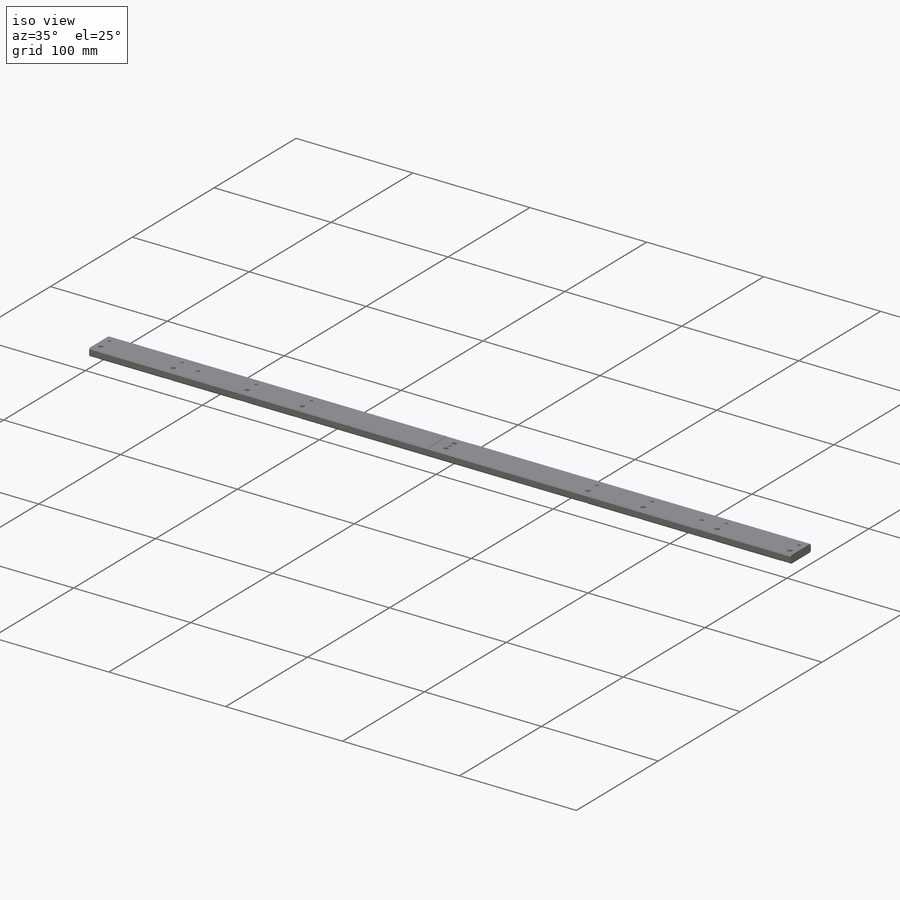
[diagram: iso view]
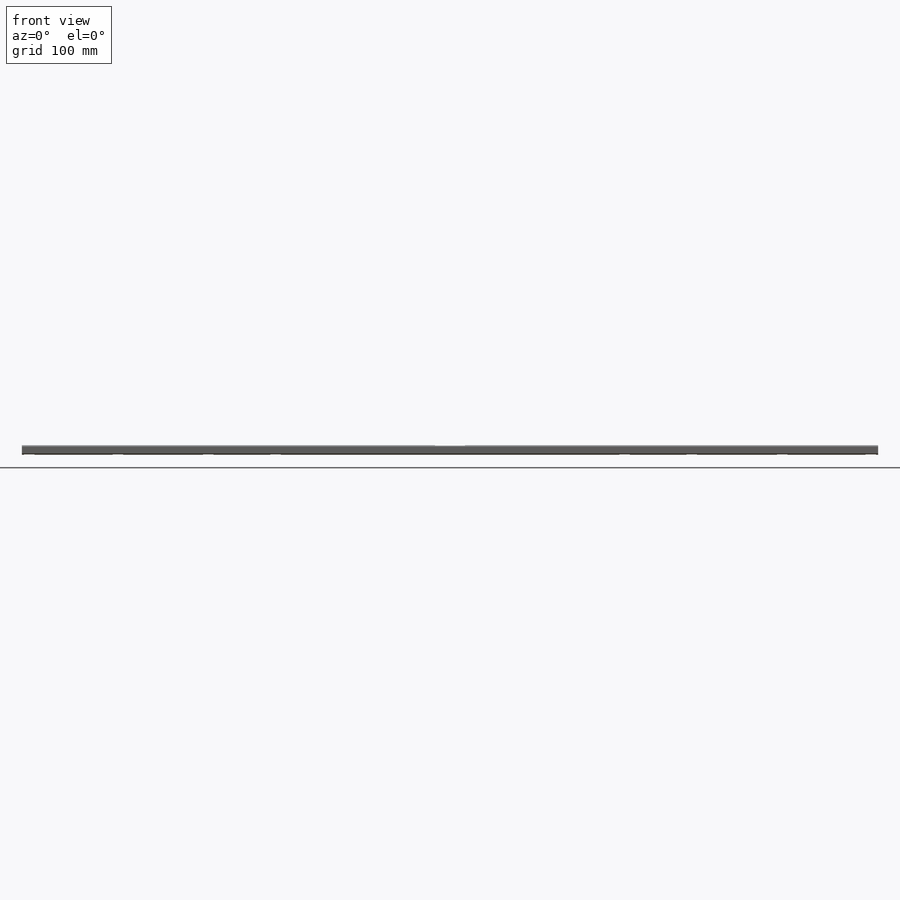
[diagram: front view]
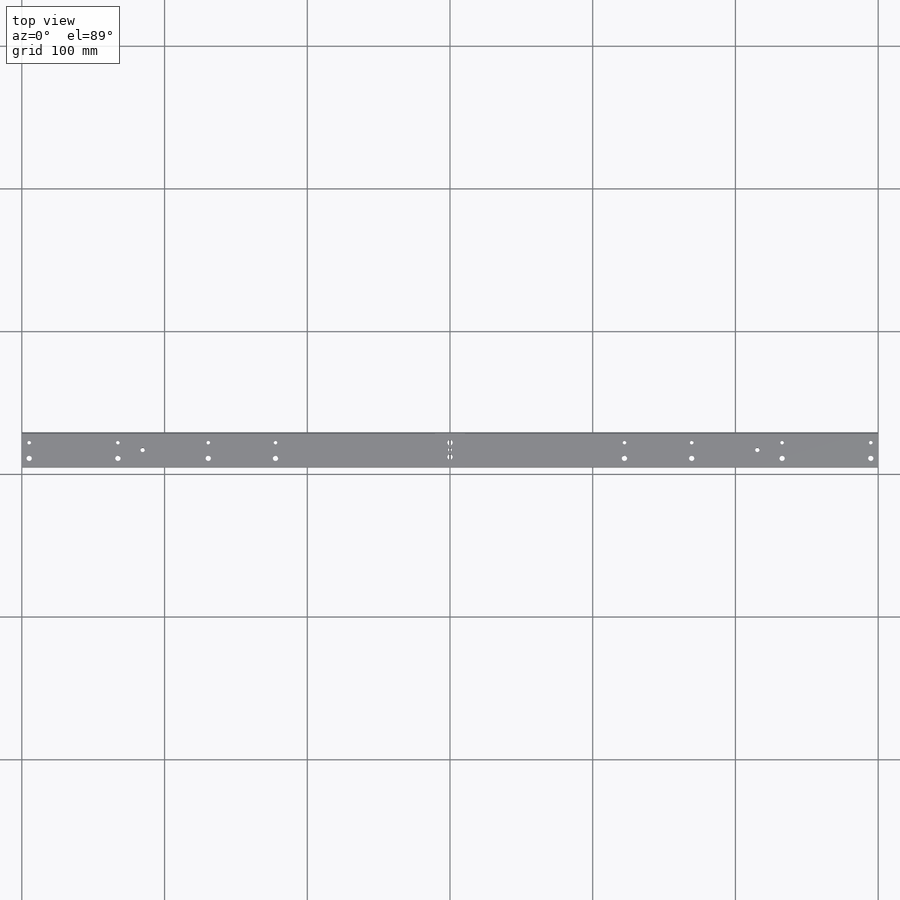
[diagram: top view]
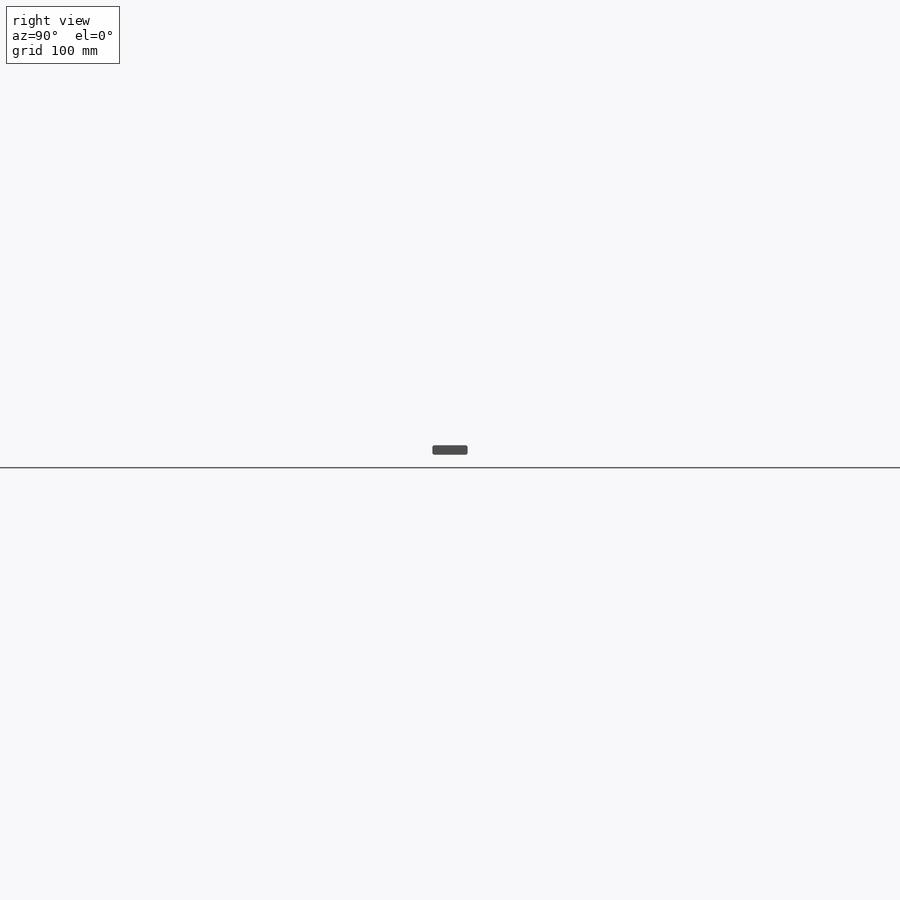
[diagram: right view]
SOLIDWORKS PART (.sldprt)
format: sldprt  version: not decoded by parser v0  size: 770,048 bytes
history: native  units: mm
features: plane x11, sketch x9, cut_extrude x7, material x1, extrude x1, chamfer x1 + 2 further entries (+12 scaffold rows collapsed)
feature tree (44):
  scaffold x12  (default folders/planes/origin — collapsed)
  material  "Material <not specified>"
  plane  "Plane1"
  plane  "Plane2"
  plane  "Plane3"
  "Axis2"
  "Axis3"
  sketch  "Sketch30"  dims[D1=4.5mm D2=207.75mm D3=~214.455424mm D4=~29.232494mm]
  extrude  "Extrude1"  Depth=600mm
  plane  "Plane6"  Offset=169.355mm
  plane  "Plane7"  Offset=122.237632mm
  plane  "Plane8"  Offset=232.687756mm
  plane  "Plane9"  Offset=5.175mm
  plane  "Plane10"  Offset=193.855mm
  plane  "Plane11"  Offset=156.76875mm
  plane  "Plane12"  Offset=122.237632mm
  sketch  "Sketch31"  dims[D1=21.0mm D2=0.25mm]
  cut_extrude  "top flexture"  [1 undecoded]
  sketch  "Sketch35"  dims[c1.D1=3.7mm c1.D2=2.9464mm c1.D4=2.5mm c2.D2=10.0mm c2.D3=17.0mm]
  cut_extrude  "top flexture screw holes"  [1 undecoded]
  sketch  "Sketch32"  dims[D1=21.0mm D2=0.25mm]
  cut_extrude  "bottom flextures"  [1 undecoded]
  sketch  "Sketch36"  dims[c1.D1=3.4544mm c1.D2=2.9464mm c1.D4=2.5mm c2.D2=10.0mm c2.D3=17.0mm]
  cut_extrude  "bottom flexture screw holes"  [1 undecoded]
  sketch  "Sketch33"  dims[D1=0.25mm D2=7.35mm]
  cut_extrude  "Extrude6"  [1 undecoded]
  sketch  "Sketch34"  dims[c1.D1=3.7mm c1.D3=2.5mm c1.D4=2.9464mm c1.D2=11.0mm c2.D4=11.0mm]
  cut_extrude  "Extrude7"  [1 undecoded]
  chamfer  "Chamfer1"  Distance=1mm Angle=45deg
  sketch  "Sketch37"
  plane  "Plane13"
  sketch  "Sketch38"  dims[D1=3.0mm D2=215.34mm D3=~22.732494mm]
  cut_extrude  "Cut-Extrude1"  [1 undecoded]
decode coverage: 10 of 18 modeling features carry decoded parameters; 2 rows unclassified (native names shown)
note: ~ marks probable driven/reference dimensions
note: 7 parameter values undecoded
summary: no parameter record found for 7 features
note: suppression state not decoded; provenance and decode notes live in map.json
